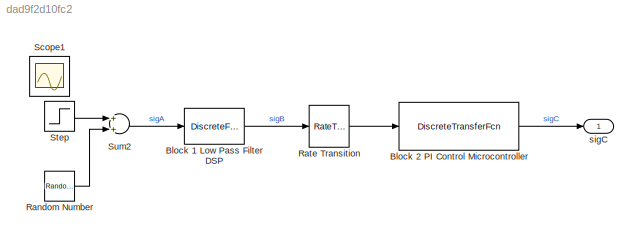
MODEL slx_dad9f2d10fc2
KIND model
CONFIG AbsTol = auto
CONFIG EnableMultiTasking = on
CONFIG FixedStep = auto
CONFIG MaxStep = auto
CONFIG MinStep = auto
CONFIG PreLoadFcn = Ki = 2;\nKp = 0.3;\nTs = 0.01;
CONFIG RelTol = 1e-3
CONFIG SampleTimeConstraint = Unconstrained
CONFIG Solver = FixedStepDiscrete
CONFIG SolverName = FixedStepDiscrete
CONFIG StartTime = 0.0
CONFIG StopTime = 2.5
BLOCK [DiscreteFilter] Block 1 Low Pass Filter DSP
  AttributesFormatString = Ts = %<SampleTime>
  Denominator = [1]
  InputPortMap = u0
  Numerator = [0.00849187184562969	0.0444846983267221	0.117299133563462	0.199122538167043	0.235872521380986	0.199122538167043	0.117299133563462	0.0444846983267221	0.00849187184562969\n]
  Ports = [1, 1]
  SampleTime = 0.005
BLOCK [DiscreteTransferFcn] Block 2 PI Control Microcontroller
  AttributesFormatString = Ts = %<SampleTime>
  Denominator = [1 -1]
  InputPortMap = u0
  Numerator = [(Kp+Ki*0.01) (-Kp)]
  Ports = [1, 1]
  SampleTime = 0.01
BLOCK [RandomNumber] Random Number
  AttributesFormatString = Mean: %<Mean>\nVariance: %<Variance>
  SampleTime = 0.005
  Variance = 0.01
BLOCK [RateTransition] Rate Transition
BLOCK [Scope] Scope1
  Floating = off
  IOType = viewer
  NumInputPorts = 1
  Ports = []
  ScopeSpecificationString = Simulink.scopes.TimeScopeBlockCfg('CurrentConfiguration', extmgr.ConfigurationSet(extmgr.Configuration('Core','General UI',true),extmgr.Configuration('Core','Source UI',true),extmgr.Configuration('Sources','WiredSimulink',true,'DataLoggingMaxPoints','7500','DataLoggingLimitDataPoints',true,'DataLoggingSaveFormat','Array','DataLoggingDecimation','1','DataLoggingDecimateData',true),extmgr.Configurat...<+2016ch>
BLOCK [Step] Step
  SampleTime = 0.005
BLOCK [Sum] Sum2
  Ports = [2, 1]
BLOCK [Outport] sigC
  IconDisplay = Port number
LINE Block 1 Low Pass Filter DSP:1 -> Rate Transition:1
LINE Block 2 PI Control Microcontroller:1 -> sigC:1
LINE Random Number:1 -> Sum2:2
LINE Rate Transition:1 -> Block 2 PI Control Microcontroller:1
LINE Step:1 -> Sum2:1
LINE Sum2:1 -> Block 1 Low Pass Filter DSP:1
